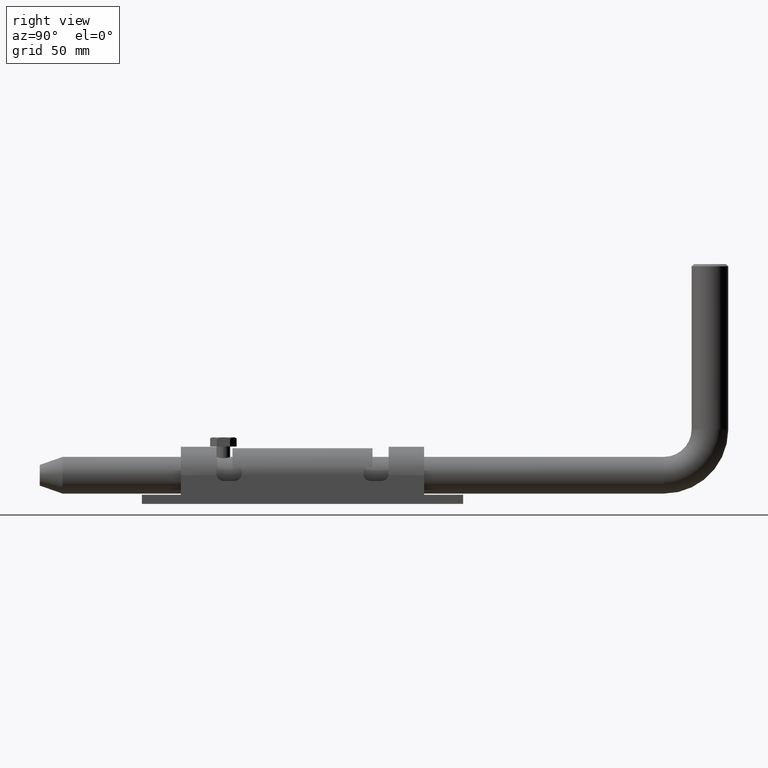
[diagram: clean part render]
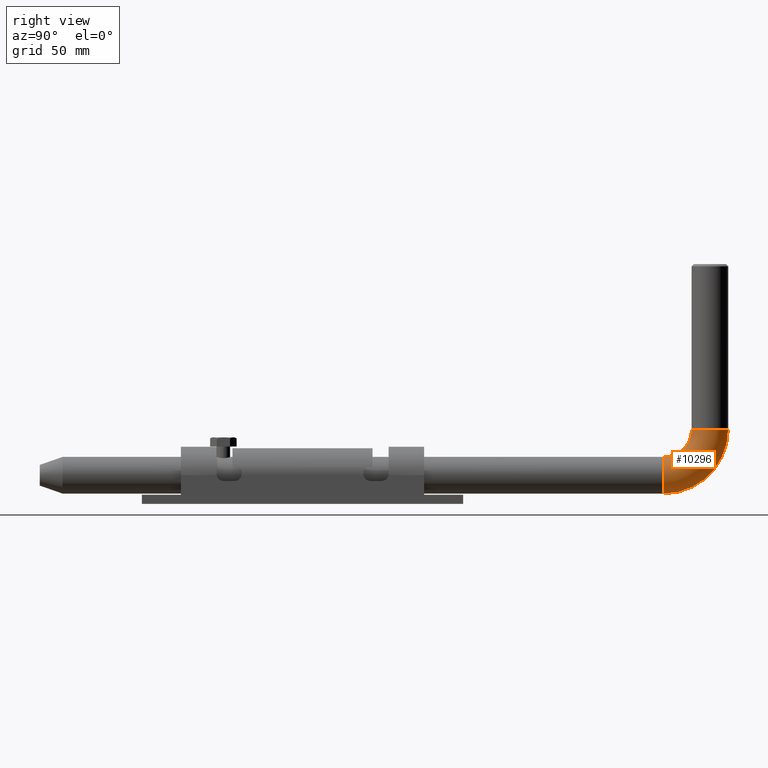
[diagram: same view with one face highlighted and labeled with its STEP entity id]
A machine part, right view. The second image highlights one B-rep face of the part: STEP entity #10296.
In plain terms, the highlighted toroidal blend (fillet) surface has major radius 20 mm and minor (blend) radius 8 mm.
Its self-contained STEP definition (entity closure, byte-faithful):
#93 = CIRCLE ( 'NONE', #6523, 28.00000000000001066 ) ;
#723 = AXIS2_PLACEMENT_3D ( 'NONE', #13441, #3449, #10114 ) ;
#1313 = CIRCLE ( 'NONE', #5884, 12.00000000000001066 ) ;
#1729 = VERTEX_POINT ( 'NONE', #17639 ) ;
#2115 = DIRECTION ( 'NONE',  ( 0.000000000000000000, -1.000000000000000000, 0.000000000000000000 ) ) ;
#2707 = ORIENTED_EDGE ( 'NONE', *, *, #7824, .T. ) ;
#3449 = DIRECTION ( 'NONE',  ( 0.000000000000000000, 1.000000000000000000, 0.000000000000000000 ) ) ;
#3463 = EDGE_CURVE ( 'NONE', #14128, #1729, #93, .T. ) ;
#3479 = ORIENTED_EDGE ( 'NONE', *, *, #20985, .F. ) ;
#3733 = TOROIDAL_SURFACE ( 'NONE', #9885, 20.00000000000001066, 8.000000000000000000 ) ;
#5884 = AXIS2_PLACEMENT_3D ( 'NONE', #8856, #6976, #10534 ) ;
#6523 = AXIS2_PLACEMENT_3D ( 'NONE', #12622, #12691, #15856 ) ;
#6976 = DIRECTION ( 'NONE',  ( 1.000000000000000000, 0.000000000000000000, 0.000000000000000000 ) ) ;
#7824 = EDGE_CURVE ( 'NONE', #11666, #14128, #11585, .T. ) ;
#8856 = CARTESIAN_POINT ( 'NONE',  ( -9.797174393178825657E-16, 271.9999999999998863, 20.00000000000000000 ) ) ;
#9284 = DIRECTION ( 'NONE',  ( 0.000000000000000000, 0.000000000000000000, -1.000000000000000000 ) ) ;
#9297 = EDGE_CURVE ( 'NONE', #12727, #1729, #14126, .T. ) ;
#9885 = AXIS2_PLACEMENT_3D ( 'NONE', #10749, #10600, #9284 ) ;
#10114 = DIRECTION ( 'NONE',  ( 0.000000000000000000, 0.000000000000000000, 1.000000000000000000 ) ) ;
#10296 = ADVANCED_FACE ( 'NONE', ( #20048 ), #3733, .T. ) ;
#10371 = DIRECTION ( 'NONE',  ( 0.000000000000000000, -1.734723475976805615E-16, 1.000000000000000000 ) ) ;
#10534 = DIRECTION ( 'NONE',  ( 0.000000000000000000, 0.000000000000000000, -1.000000000000000000 ) ) ;
#10600 = DIRECTION ( 'NONE',  ( 1.000000000000000000, 0.000000000000000000, 0.000000000000000000 ) ) ;
#10749 = CARTESIAN_POINT ( 'NONE',  ( 0.000000000000000000, 271.9999999999998863, 20.00000000000000000 ) ) ;
#11585 = CIRCLE ( 'NONE', #723, 8.000000000000000000 ) ;
#11666 = VERTEX_POINT ( 'NONE', #18383 ) ;
#12125 = CARTESIAN_POINT ( 'NONE',  ( 0.000000000000000000, 283.9999999999999432, 20.00000000000000355 ) ) ;
#12622 = CARTESIAN_POINT ( 'NONE',  ( 0.000000000000000000, 271.9999999999998863, 20.00000000000000000 ) ) ;
#12691 = DIRECTION ( 'NONE',  ( 1.000000000000000000, 0.000000000000000000, 0.000000000000000000 ) ) ;
#12727 = VERTEX_POINT ( 'NONE', #12125 ) ;
#13441 = CARTESIAN_POINT ( 'NONE',  ( 0.000000000000000000, 271.9999999999998863, 0.000000000000000000 ) ) ;
#14067 = EDGE_LOOP ( 'NONE', ( #2707, #20700, #20882, #3479 ) ) ;
#14126 = CIRCLE ( 'NONE', #20957, 8.000000000000007105 ) ;
#14128 = VERTEX_POINT ( 'NONE', #16205 ) ;
#15856 = DIRECTION ( 'NONE',  ( 0.000000000000000000, 0.000000000000000000, -1.000000000000000000 ) ) ;
#16205 = CARTESIAN_POINT ( 'NONE',  ( 9.797174393178825657E-16, 271.9999999999998863, -8.000000000000000000 ) ) ;
#17639 = CARTESIAN_POINT ( 'NONE',  ( 9.797174393178815797E-16, 299.9999999999999432, 20.00000000000000355 ) ) ;
#18383 = CARTESIAN_POINT ( 'NONE',  ( 0.000000000000000000, 271.9999999999998863, 8.000000000000000000 ) ) ;
#20048 = FACE_OUTER_BOUND ( 'NONE', #14067, .T. ) ;
#20056 = CARTESIAN_POINT ( 'NONE',  ( 0.000000000000000000, 291.9999999999999432, 20.00000000000000355 ) ) ;
#20700 = ORIENTED_EDGE ( 'NONE', *, *, #3463, .T. ) ;
#20882 = ORIENTED_EDGE ( 'NONE', *, *, #9297, .F. ) ;
#20957 = AXIS2_PLACEMENT_3D ( 'NONE', #20056, #10371, #2115 ) ;
#20985 = EDGE_CURVE ( 'NONE', #11666, #12727, #1313, .T. ) ;